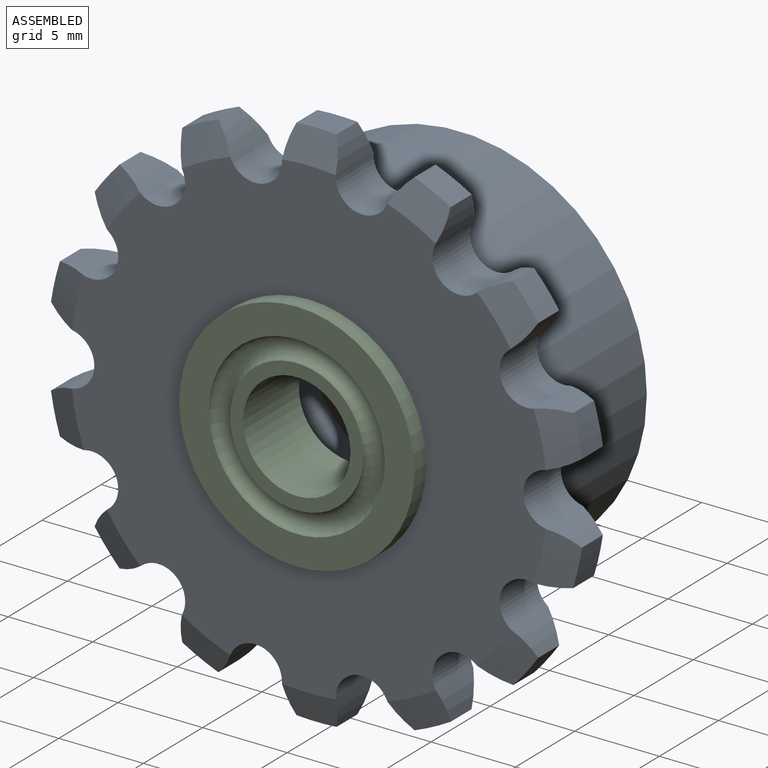
[diagram: assembled view]
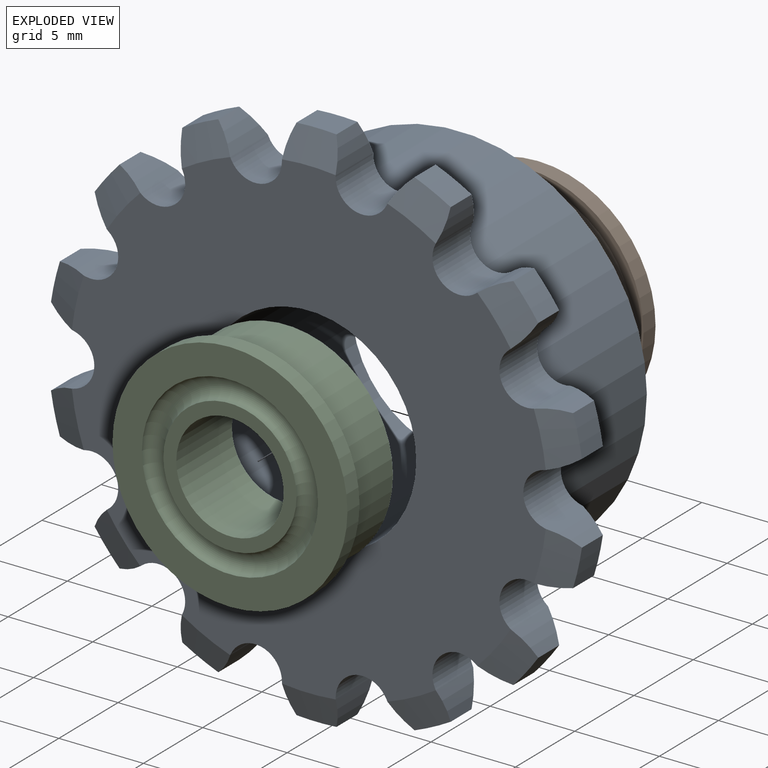
[diagram: exploded view]
GUIDED TOUR — MATED ASSEMBLY (Onshape document f20849c53b13fc9cc8166e43, AutoMate assembly f20849c53b13fc9cc8166e43_e1bc478d7630e20a39db0aa1_9a07ffc06514931fd1141d6a_default)

This assembly has 3 components, labeled P0..P2 below (a component is one placed occurrence of a part; the same part can appear more than once), held together by 2 mates. A mate is a constraint between two components; its type names the relative motion it leaves free:
  FASTENED — locks the two components together rigidly (no relative motion).
Axis/direction vectors are unit vectors and 'through' points are millimeter coordinates, both in the assembly's world frame.

MATES
  1. FASTENED "Fastened 2": P1 <-> P0, direction (0.000, -1.000, 0.000) through (0.00, 9.52, 0.00) mm
  2. FASTENED "Fastened 1": P2 <-> P0, direction (0.000, 1.000, 0.000) through (0.00, -3.18, 0.00) mm

ASSEMBLY ORDER
  1. P0 — the base component [order heuristic]
  2. P1 [order heuristic]
  3. P2 [order heuristic]
Order-tag legend:
  [order heuristic] — this assembly is geometrically interlocked (no collision-free removal order exists), so components are listed in mate-graph order; insertion feasibility is not verified.

Of the 3 components, 1 carries the full construction recipe — the FeatureScript program that regenerates the part's solid from scratch; the rest are supplied as boundary geometry only.
Each toured component is shown spotlighted twice — in the assembled view, then in the exploded view, where a leader line traces a displaced component back to its assembled socket (saturated green if recipe-attached, orange if geometry-only; every other component desaturated gray) — followed by its recipe or geometry summary and the mates that hold it.
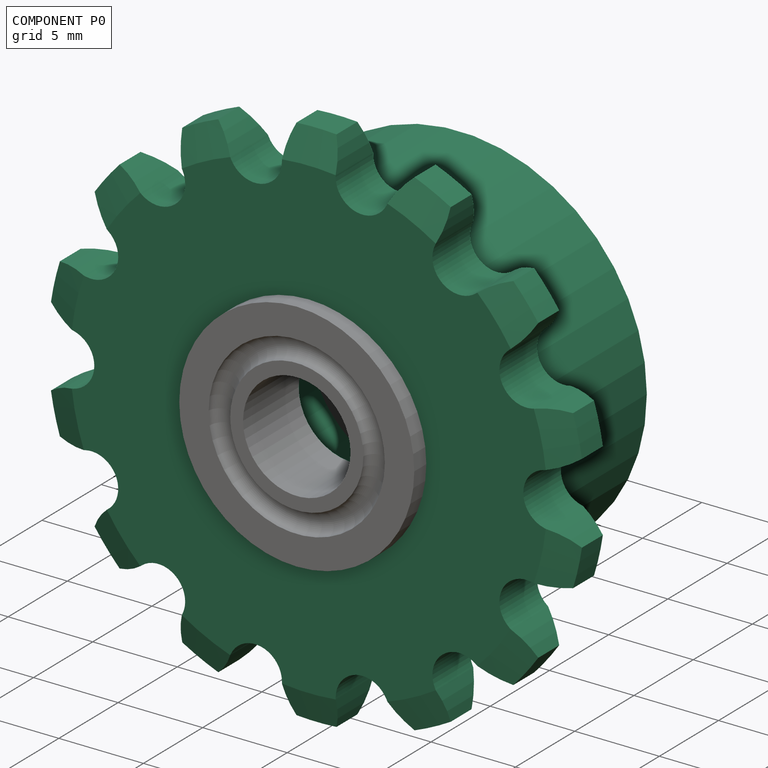
[diagram: component P0 — assembled]
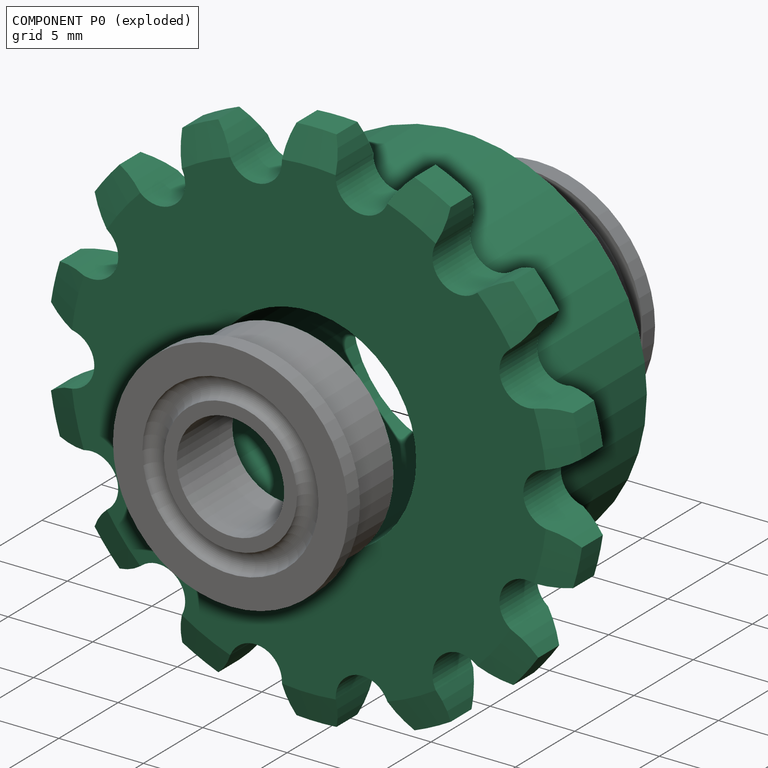
[diagram: component P0 — exploded]
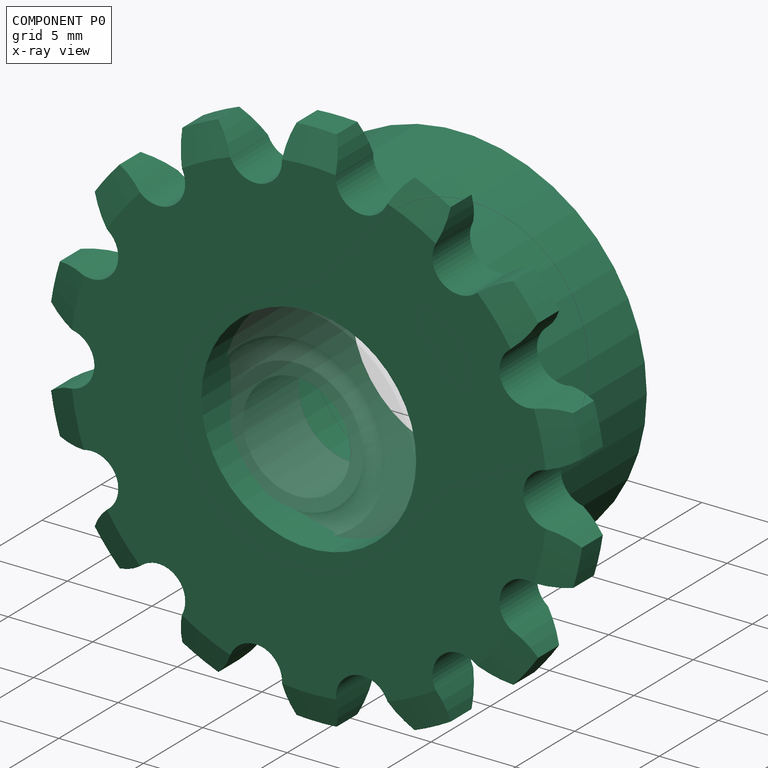
[diagram: component P0 — x-ray view]
COMPONENT P0 — recipe-attached (CADFS 00545166, mesh-verified: the recipe's output STEP matches this component's geometry to below the mesh-comparison resolution (tessellation chordal tolerance ~0.0696 mm)).
Held by: FASTENED mate "Fastened 2" to P1; FASTENED mate "Fastened 1" to P2.
Construction recipe (FeatureScript — the CAD program that rebuilds this solid; sketch coordinates are in the units given by the * unit suffixes, e.g. mm):

FeatureScript 1511;
import(path : "onshape/std/geometry.fs", version : "1511.0");
import(path : "onshape/std/common.fs", version : "1511.0");
const mm = millimeter;
const VERTEX = EntityType.VERTEX;
const EDGE = EntityType.EDGE;
const FACE = EntityType.FACE;
const BODY = EntityType.BODY;
function v(x, y){return vector(x, y);}
function OD(order){return orderDisambiguation(order);}
function OSD(set){return originalSetDisambiguation(set);}
function TD(topology){return topologyDisambiguation(topology);}
function TDD(query){return trueDependencyDisambiguation(query);}
function sQuery(a, b, c) {return sketchEntityQuery(a, b, c);}

annotation { "Feature Type Name" : "Feature", "Feature Type Description" : "" }
export const myFeature = defineFeature(function(context is Context, id is Id, definition is map)
    precondition{}
    {
        {
            var Q0;
            Q0=qCreatedBy(makeId("Front.planeOp"),FACE);
            var sketch = newSketch(context, id + "F0", { "sketchPlane" : qUnion([Q0])});
            skCircle(sketch, "E0.cCircle", {"center": v(0, 0) * mm, "radius": 13.91 * mm, "construction": true});
            skLineSegment(sketch, "E0.0", {"start": v(-3.17, 13.91) * mm, "end": v(3.17, 13.91) * mm, "construction": true});
            skLineSegment(sketch, "E0.1", {"start": v(3.18, 13.91) * mm, "end": v(8.9, 11.16) * mm, "construction": true});
            skLineSegment(sketch, "E0.2", {"start": v(8.9, 11.16) * mm, "end": v(12.86, 6.2) * mm, "construction": true});
            skLineSegment(sketch, "E0.3", {"start": v(12.86, 6.2) * mm, "end": v(14.27, 0) * mm, "construction": true});
            skLineSegment(sketch, "E0.4", {"start": v(14.27, 0) * mm, "end": v(12.86, -6.2) * mm, "construction": true});
            skLineSegment(sketch, "E0.5", {"start": v(12.86, -6.2) * mm, "end": v(8.9, -11.16) * mm, "construction": true});
            skLineSegment(sketch, "E0.6", {"start": v(8.9, -11.16) * mm, "end": v(3.18, -13.91) * mm, "construction": true});
            skLineSegment(sketch, "E0.7", {"start": v(3.17, -13.91) * mm, "end": v(-3.17, -13.91) * mm, "construction": true});
            skLineSegment(sketch, "E0.8", {"start": v(-3.17, -13.91) * mm, "end": v(-8.9, -11.16) * mm, "construction": true});
            skLineSegment(sketch, "E0.9", {"start": v(-8.9, -11.16) * mm, "end": v(-12.86, -6.2) * mm, "construction": true});
            skLineSegment(sketch, "E0.10", {"start": v(-12.86, -6.2) * mm, "end": v(-14.27, 0) * mm, "construction": true});
            skLineSegment(sketch, "E0.11", {"start": v(-14.27, 0) * mm, "end": v(-12.86, 6.2) * mm, "construction": true});
            skLineSegment(sketch, "E0.12", {"start": v(-12.86, 6.2) * mm, "end": v(-8.9, 11.16) * mm, "construction": true});
            skLineSegment(sketch, "E0.13", {"start": v(-8.9, 11.16) * mm, "end": v(-3.18, 13.91) * mm, "construction": true});
            skPoint(sketch, "E0.0.midPoint", {"position": v(0, 13.91) * mm});
            skCircle(sketch, "E1", {"center": v(3.17, 13.91) * mm, "radius": 1.59 * mm});
            skCircle(sketch, "E2", {"center": v(-3.17, 13.91) * mm, "radius": 1.59 * mm});
            skCircle(sketch, "E3", {"center": v(8.9, 11.16) * mm, "radius": 1.59 * mm});
            skCircle(sketch, "E4", {"center": v(-8.9, 11.16) * mm, "radius": 1.59 * mm});
            skCircle(sketch, "E5", {"center": v(-12.86, 6.2) * mm, "radius": 1.59 * mm});
            skCircle(sketch, "E6", {"center": v(-14.27, 0) * mm, "radius": 1.59 * mm});
            skCircle(sketch, "E7", {"center": v(12.86, 6.2) * mm, "radius": 1.59 * mm});
            skCircle(sketch, "E8", {"center": v(14.27, 0) * mm, "radius": 1.59 * mm});
            skCircle(sketch, "E9", {"center": v(12.86, -6.2) * mm, "radius": 1.59 * mm});
            skCircle(sketch, "E10", {"center": v(8.9, -11.16) * mm, "radius": 1.59 * mm});
            skCircle(sketch, "E11", {"center": v(3.18, -13.91) * mm, "radius": 1.59 * mm});
            skCircle(sketch, "E12", {"center": v(-12.86, -6.2) * mm, "radius": 1.59 * mm});
            skCircle(sketch, "E13", {"center": v(-8.9, -11.16) * mm, "radius": 1.59 * mm});
            skCircle(sketch, "E14", {"center": v(-3.17, -13.91) * mm, "radius": 1.59 * mm});
            skCircle(sketch, "E15", {"center": v(0, 0) * mm, "radius": 15.88 * mm});
            skArc(sketch, "E16", {"start": v(-1.59, 13.91) * mm, "mid": v(-1.17, 15.85) * mm, "end": v(0, 17.46) * mm});
            skArc(sketch, "E17", {"start": v(1.59, 13.91) * mm, "mid": v(1.17, 15.85) * mm, "end": v(0, 17.46) * mm});
            skArc(sketch, "E18", {"start": v(7.47, 11.84) * mm, "mid": v(7.94, 13.78) * mm, "end": v(7.58, 15.73) * mm});
            skArc(sketch, "E19", {"start": v(4.6, 13.22) * mm, "mid": v(5.82, 14.8) * mm, "end": v(7.58, 15.73) * mm});
            skArc(sketch, "E20", {"start": v(11.87, 7.43) * mm, "mid": v(13.13, 8.97) * mm, "end": v(13.65, 10.89) * mm});
            skArc(sketch, "E21", {"start": v(9.89, 9.91) * mm, "mid": v(11.66, 10.8) * mm, "end": v(13.65, 10.89) * mm});
            skArc(sketch, "E22", {"start": v(13.2, 4.64) * mm, "mid": v(15.2, 4.67) * mm, "end": v(17.02, 3.89) * mm});
            skArc(sketch, "E23", {"start": v(13.92, 1.55) * mm, "mid": v(15.72, 2.38) * mm, "end": v(17.02, 3.89) * mm});
            skArc(sketch, "E24", {"start": v(13.2, -4.64) * mm, "mid": v(15.2, -4.67) * mm, "end": v(17.02, -3.89) * mm});
            skArc(sketch, "E25", {"start": v(13.92, -1.55) * mm, "mid": v(15.72, -2.38) * mm, "end": v(17.02, -3.89) * mm});
            skArc(sketch, "E26", {"start": v(9.89, -9.91) * mm, "mid": v(11.66, -10.8) * mm, "end": v(13.65, -10.89) * mm});
            skArc(sketch, "E27", {"start": v(11.87, -7.43) * mm, "mid": v(13.13, -8.97) * mm, "end": v(13.65, -10.89) * mm});
            skArc(sketch, "E28", {"start": v(7.47, -11.84) * mm, "mid": v(7.94, -13.78) * mm, "end": v(7.58, -15.73) * mm});
            skArc(sketch, "E29", {"start": v(4.6, -13.22) * mm, "mid": v(5.82, -14.8) * mm, "end": v(7.58, -15.73) * mm});
            skArc(sketch, "E30", {"start": v(1.59, -13.91) * mm, "mid": v(1.17, -15.85) * mm, "end": v(0, -17.46) * mm});
            skArc(sketch, "E31", {"start": v(-1.59, -13.91) * mm, "mid": v(-1.17, -15.85) * mm, "end": v(0, -17.46) * mm});
            skArc(sketch, "E32", {"start": v(-4.6, -13.22) * mm, "mid": v(-5.82, -14.8) * mm, "end": v(-7.58, -15.73) * mm});
            skArc(sketch, "E33", {"start": v(-7.47, -11.84) * mm, "mid": v(-7.94, -13.78) * mm, "end": v(-7.58, -15.73) * mm});
            skArc(sketch, "E34", {"start": v(-11.8, -7.37) * mm, "mid": v(-13.1, -8.93) * mm, "end": v(-13.65, -10.89) * mm});
            skArc(sketch, "E35", {"start": v(-9.89, -9.91) * mm, "mid": v(-11.67, -10.8) * mm, "end": v(-13.65, -10.89) * mm});
            skArc(sketch, "E36", {"start": v(-13.92, -1.55) * mm, "mid": v(-15.72, -2.38) * mm, "end": v(-17.02, -3.89) * mm});
            skArc(sketch, "E37", {"start": v(-13.2, -4.64) * mm, "mid": v(-15.2, -4.67) * mm, "end": v(-17.02, -3.89) * mm});
            skArc(sketch, "E38", {"start": v(-13.92, 1.55) * mm, "mid": v(-15.72, 2.38) * mm, "end": v(-17.02, 3.89) * mm});
            skArc(sketch, "E39", {"start": v(-13.2, 4.64) * mm, "mid": v(-15.2, 4.67) * mm, "end": v(-17.02, 3.89) * mm});
            skArc(sketch, "E40", {"start": v(-9.89, 9.91) * mm, "mid": v(-11.66, 10.8) * mm, "end": v(-13.65, 10.89) * mm});
            skArc(sketch, "E41", {"start": v(-11.87, 7.43) * mm, "mid": v(-13.13, 8.97) * mm, "end": v(-13.65, 10.89) * mm});
            skArc(sketch, "E42", {"start": v(-4.6, 13.22) * mm, "mid": v(-5.82, 14.8) * mm, "end": v(-7.58, 15.73) * mm});
            skArc(sketch, "E43", {"start": v(-7.47, 11.84) * mm, "mid": v(-7.94, 13.78) * mm, "end": v(-7.58, 15.73) * mm});
            skCircle(sketch, "E44", {"center": v(0, 0) * mm, "radius": 6.35 * mm});
            skCircle(sketch, "E45", {"center": v(0, 0) * mm, "radius": 11.1 * mm});
            skSolve(sketch);
        }
        {
            var Q0;
            Q0=makeQuery(id+"F0.imprint","IMPRINT",FACE,{"disambiguationData":[TD([[makeQuery(id+"F0.imprint","IMPRINT",EDGE,{"derivedFrom":sQuery(id+"F0.wireOp",EDGE,"E45")}),-1.0]])]});
            var Q1;
            Q1=makeQuery(id+"F0.imprint","IMPRINT",FACE,{"disambiguationData":[TD([[makeQuery(id+"F0.imprint","IMPRINT",EDGE,{"derivedFrom":sQuery(id+"F0.wireOp",EDGE,"E44")}),-1.0]])]});
            extrude(context, id + "F1", {"entities" : qUnion([Q0, Q1]), "depth" : 3.17 * mm, "offsetDistance" : 25.4 * mm});
        }
        {
            var Q0;
            Q0=makeQuery(id+"F0.imprint","IMPRINT",FACE,{"disambiguationData":[TD([[makeQuery(id+"F0.imprint","IMPRINT",EDGE,{"derivedFrom":sQuery(id+"F0.wireOp",EDGE,"E44")}),-1.0]])]});
            extrude(context, id + "F2", {"entities" : qUnion([Q0]), "operationType" : NewBodyOperationType.ADD, "oppositeDirection" : true, "depth" : 9.52 * mm, "offsetDistance" : 25.4 * mm});
        }
        {
            var Q0;
            {var subQ0=sQuery(id+"F0.wireOp",EDGE,"E15");Q0=makeQuery(id+"F1.opExtrude","CAP_EDGE",EDGE,{"disambiguationData":[OSD([subQ0]),TDD([makeQuery(id+"F0.imprint","IMPRINT",EDGE,{"disambiguationData":[TD([[makeQuery(id+"F0.imprint","INTERSECT",VERTEX,{"derivedFrom":[subQ0,sQuery(id+"F0.wireOp",EDGE,"E22")]}),1.0]])],"derivedFrom":subQ0})])],"isStart":true});}
            var Q1;
            {var subQ0=sQuery(id+"F0.wireOp",EDGE,"E15");Q1=makeQuery(id+"F1.opExtrude","CAP_EDGE",EDGE,{"disambiguationData":[OSD([subQ0]),TDD([makeQuery(id+"F0.imprint","IMPRINT",EDGE,{"disambiguationData":[TD([[makeQuery(id+"F0.imprint","INTERSECT",VERTEX,{"derivedFrom":[subQ0,sQuery(id+"F0.wireOp",EDGE,"E24")]}),-1.0]])],"derivedFrom":subQ0})])],"isStart":true});}
            var Q2;
            {var subQ0=sQuery(id+"F0.wireOp",EDGE,"E15");Q2=makeQuery(id+"F1.opExtrude","CAP_EDGE",EDGE,{"disambiguationData":[OSD([subQ0]),TDD([makeQuery(id+"F0.imprint","IMPRINT",EDGE,{"disambiguationData":[TD([[makeQuery(id+"F0.imprint","INTERSECT",VERTEX,{"derivedFrom":[subQ0,sQuery(id+"F0.wireOp",EDGE,"E26")]}),-1.0]])],"derivedFrom":subQ0})])],"isStart":true});}
            var Q3;
            {var subQ0=sQuery(id+"F0.wireOp",EDGE,"E15");Q3=makeQuery(id+"F1.opExtrude","CAP_EDGE",EDGE,{"disambiguationData":[OSD([subQ0]),TDD([makeQuery(id+"F0.imprint","IMPRINT",EDGE,{"disambiguationData":[TD([[makeQuery(id+"F0.imprint","INTERSECT",VERTEX,{"derivedFrom":[subQ0,sQuery(id+"F0.wireOp",EDGE,"E29")]}),-1.0]])],"derivedFrom":subQ0})])],"isStart":true});}
            var Q4;
            {var subQ0=sQuery(id+"F0.wireOp",EDGE,"E15");Q4=makeQuery(id+"F1.opExtrude","CAP_EDGE",EDGE,{"disambiguationData":[OSD([subQ0]),TDD([makeQuery(id+"F0.imprint","IMPRINT",EDGE,{"disambiguationData":[TD([[makeQuery(id+"F0.imprint","INTERSECT",VERTEX,{"derivedFrom":[subQ0,sQuery(id+"F0.wireOp",EDGE,"E31")]}),-1.0]])],"derivedFrom":subQ0})])],"isStart":true});}
            var Q5;
            {var subQ0=sQuery(id+"F0.wireOp",EDGE,"E15");Q5=makeQuery(id+"F1.opExtrude","CAP_EDGE",EDGE,{"disambiguationData":[OSD([subQ0]),TDD([makeQuery(id+"F0.imprint","IMPRINT",EDGE,{"disambiguationData":[TD([[makeQuery(id+"F0.imprint","INTERSECT",VERTEX,{"derivedFrom":[subQ0,sQuery(id+"F0.wireOp",EDGE,"E33")]}),-1.0]])],"derivedFrom":subQ0})])],"isStart":true});}
            var Q6;
            {var subQ0=sQuery(id+"F0.wireOp",EDGE,"E15");Q6=makeQuery(id+"F1.opExtrude","CAP_EDGE",EDGE,{"disambiguationData":[OSD([subQ0]),TDD([makeQuery(id+"F0.imprint","IMPRINT",EDGE,{"disambiguationData":[TD([[makeQuery(id+"F0.imprint","INTERSECT",VERTEX,{"derivedFrom":[subQ0,sQuery(id+"F0.wireOp",EDGE,"E34")]}),-1.0]])],"derivedFrom":subQ0})])],"isStart":true});}
            var Q7;
            {var subQ0=sQuery(id+"F0.wireOp",EDGE,"E15");Q7=makeQuery(id+"F1.opExtrude","CAP_EDGE",EDGE,{"disambiguationData":[OSD([subQ0]),TDD([makeQuery(id+"F0.imprint","IMPRINT",EDGE,{"disambiguationData":[TD([[makeQuery(id+"F0.imprint","INTERSECT",VERTEX,{"derivedFrom":[subQ0,sQuery(id+"F0.wireOp",EDGE,"E36")]}),-1.0]])],"derivedFrom":subQ0})])],"isStart":true});}
            var Q8;
            {var subQ0=sQuery(id+"F0.wireOp",EDGE,"E15");Q8=makeQuery(id+"F1.opExtrude","CAP_EDGE",EDGE,{"disambiguationData":[OSD([subQ0]),TDD([makeQuery(id+"F0.imprint","IMPRINT",EDGE,{"disambiguationData":[TD([[makeQuery(id+"F0.imprint","INTERSECT",VERTEX,{"derivedFrom":[subQ0,sQuery(id+"F0.wireOp",EDGE,"E39")]}),-1.0]])],"derivedFrom":subQ0})])],"isStart":true});}
            var Q9;
            {var subQ0=sQuery(id+"F0.wireOp",EDGE,"E15");Q9=makeQuery(id+"F1.opExtrude","CAP_EDGE",EDGE,{"disambiguationData":[OSD([subQ0]),TDD([makeQuery(id+"F0.imprint","IMPRINT",EDGE,{"disambiguationData":[TD([[makeQuery(id+"F0.imprint","INTERSECT",VERTEX,{"derivedFrom":[subQ0,sQuery(id+"F0.wireOp",EDGE,"E40")]}),-1.0]])],"derivedFrom":subQ0})])],"isStart":true});}
            var Q10;
            {var subQ0=sQuery(id+"F0.wireOp",EDGE,"E15");Q10=makeQuery(id+"F1.opExtrude","CAP_EDGE",EDGE,{"disambiguationData":[OSD([subQ0]),TDD([makeQuery(id+"F0.imprint","IMPRINT",EDGE,{"disambiguationData":[TD([[makeQuery(id+"F0.imprint","INTERSECT",VERTEX,{"derivedFrom":[subQ0,sQuery(id+"F0.wireOp",EDGE,"E42")]}),-1.0]])],"derivedFrom":subQ0})])],"isStart":true});}
            var Q11;
            {var subQ0=sQuery(id+"F0.wireOp",EDGE,"E15");Q11=makeQuery(id+"F1.opExtrude","CAP_EDGE",EDGE,{"disambiguationData":[OSD([subQ0]),TDD([makeQuery(id+"F0.imprint","IMPRINT",EDGE,{"disambiguationData":[TD([[makeQuery(id+"F0.imprint","INTERSECT",VERTEX,{"derivedFrom":[subQ0,sQuery(id+"F0.wireOp",EDGE,"E17")]}),-1.0]])],"derivedFrom":subQ0})])],"isStart":true});}
            var Q12;
            {var subQ0=sQuery(id+"F0.wireOp",EDGE,"E15");Q12=makeQuery(id+"F1.opExtrude","CAP_EDGE",EDGE,{"disambiguationData":[OSD([subQ0]),TDD([makeQuery(id+"F0.imprint","IMPRINT",EDGE,{"disambiguationData":[TD([[makeQuery(id+"F0.imprint","INTERSECT",VERTEX,{"derivedFrom":[subQ0,sQuery(id+"F0.wireOp",EDGE,"E18")]}),-1.0]])],"derivedFrom":subQ0})])],"isStart":true});}
            var Q13;
            {var subQ0=sQuery(id+"F0.wireOp",EDGE,"E15");Q13=makeQuery(id+"F1.opExtrude","CAP_EDGE",EDGE,{"disambiguationData":[OSD([subQ0]),TDD([makeQuery(id+"F0.imprint","IMPRINT",EDGE,{"disambiguationData":[TD([[makeQuery(id+"F0.imprint","INTERSECT",VERTEX,{"derivedFrom":[subQ0,sQuery(id+"F0.wireOp",EDGE,"E20")]}),-1.0]])],"derivedFrom":subQ0})])],"isStart":true});}
            chamfer(context, id + "F3", {"entities" : qUnion([Q0, Q1, Q2, Q3, Q4, Q5, Q6, Q7, Q8, Q9, Q10, Q11, Q12, Q13]), "chamferType" : ChamferType.OFFSET_ANGLE, "width" : 0.76 * mm, "oppositeDirection" : false, "angle" : 67 * degree, "tangentPropagation" : true});
        }
        {
            var Q0;
            {var subQ0=sQuery(id+"F0.wireOp",EDGE,"E15");Q0=makeQuery(id+"F1.opExtrude","CAP_EDGE",EDGE,{"disambiguationData":[OSD([subQ0]),TDD([makeQuery(id+"F0.imprint","IMPRINT",EDGE,{"disambiguationData":[TD([[makeQuery(id+"F0.imprint","INTERSECT",VERTEX,{"derivedFrom":[subQ0,sQuery(id+"F0.wireOp",EDGE,"E17")]}),-1.0]])],"derivedFrom":subQ0})])],"isStart":false});}
            var Q1;
            {var subQ0=sQuery(id+"F0.wireOp",EDGE,"E15");Q1=makeQuery(id+"F1.opExtrude","CAP_EDGE",EDGE,{"disambiguationData":[OSD([subQ0]),TDD([makeQuery(id+"F0.imprint","IMPRINT",EDGE,{"disambiguationData":[TD([[makeQuery(id+"F0.imprint","INTERSECT",VERTEX,{"derivedFrom":[subQ0,sQuery(id+"F0.wireOp",EDGE,"E18")]}),-1.0]])],"derivedFrom":subQ0})])],"isStart":false});}
            var Q2;
            {var subQ0=sQuery(id+"F0.wireOp",EDGE,"E15");Q2=makeQuery(id+"F1.opExtrude","CAP_EDGE",EDGE,{"disambiguationData":[OSD([subQ0]),TDD([makeQuery(id+"F0.imprint","IMPRINT",EDGE,{"disambiguationData":[TD([[makeQuery(id+"F0.imprint","INTERSECT",VERTEX,{"derivedFrom":[subQ0,sQuery(id+"F0.wireOp",EDGE,"E20")]}),-1.0]])],"derivedFrom":subQ0})])],"isStart":false});}
            var Q3;
            {var subQ0=sQuery(id+"F0.wireOp",EDGE,"E15");Q3=makeQuery(id+"F1.opExtrude","CAP_EDGE",EDGE,{"disambiguationData":[OSD([subQ0]),TDD([makeQuery(id+"F0.imprint","IMPRINT",EDGE,{"disambiguationData":[TD([[makeQuery(id+"F0.imprint","INTERSECT",VERTEX,{"derivedFrom":[subQ0,sQuery(id+"F0.wireOp",EDGE,"E22")]}),1.0]])],"derivedFrom":subQ0})])],"isStart":false});}
            var Q4;
            {var subQ0=sQuery(id+"F0.wireOp",EDGE,"E15");Q4=makeQuery(id+"F1.opExtrude","CAP_EDGE",EDGE,{"disambiguationData":[OSD([subQ0]),TDD([makeQuery(id+"F0.imprint","IMPRINT",EDGE,{"disambiguationData":[TD([[makeQuery(id+"F0.imprint","INTERSECT",VERTEX,{"derivedFrom":[subQ0,sQuery(id+"F0.wireOp",EDGE,"E24")]}),-1.0]])],"derivedFrom":subQ0})])],"isStart":false});}
            var Q5;
            {var subQ0=sQuery(id+"F0.wireOp",EDGE,"E15");Q5=makeQuery(id+"F1.opExtrude","CAP_EDGE",EDGE,{"disambiguationData":[OSD([subQ0]),TDD([makeQuery(id+"F0.imprint","IMPRINT",EDGE,{"disambiguationData":[TD([[makeQuery(id+"F0.imprint","INTERSECT",VERTEX,{"derivedFrom":[subQ0,sQuery(id+"F0.wireOp",EDGE,"E26")]}),-1.0]])],"derivedFrom":subQ0})])],"isStart":false});}
            var Q6;
            {var subQ0=sQuery(id+"F0.wireOp",EDGE,"E15");Q6=makeQuery(id+"F1.opExtrude","CAP_EDGE",EDGE,{"disambiguationData":[OSD([subQ0]),TDD([makeQuery(id+"F0.imprint","IMPRINT",EDGE,{"disambiguationData":[TD([[makeQuery(id+"F0.imprint","INTERSECT",VERTEX,{"derivedFrom":[subQ0,sQuery(id+"F0.wireOp",EDGE,"E29")]}),-1.0]])],"derivedFrom":subQ0})])],"isStart":false});}
            var Q7;
            {var subQ0=sQuery(id+"F0.wireOp",EDGE,"E15");Q7=makeQuery(id+"F1.opExtrude","CAP_EDGE",EDGE,{"disambiguationData":[OSD([subQ0]),TDD([makeQuery(id+"F0.imprint","IMPRINT",EDGE,{"disambiguationData":[TD([[makeQuery(id+"F0.imprint","INTERSECT",VERTEX,{"derivedFrom":[subQ0,sQuery(id+"F0.wireOp",EDGE,"E31")]}),-1.0]])],"derivedFrom":subQ0})])],"isStart":false});}
            var Q8;
            {var subQ0=sQuery(id+"F0.wireOp",EDGE,"E15");Q8=makeQuery(id+"F1.opExtrude","CAP_EDGE",EDGE,{"disambiguationData":[OSD([subQ0]),TDD([makeQuery(id+"F0.imprint","IMPRINT",EDGE,{"disambiguationData":[TD([[makeQuery(id+"F0.imprint","INTERSECT",VERTEX,{"derivedFrom":[subQ0,sQuery(id+"F0.wireOp",EDGE,"E33")]}),-1.0]])],"derivedFrom":subQ0})])],"isStart":false});}
            var Q9;
            {var subQ0=sQuery(id+"F0.wireOp",EDGE,"E15");Q9=makeQuery(id+"F1.opExtrude","CAP_EDGE",EDGE,{"disambiguationData":[OSD([subQ0]),TDD([makeQuery(id+"F0.imprint","IMPRINT",EDGE,{"disambiguationData":[TD([[makeQuery(id+"F0.imprint","INTERSECT",VERTEX,{"derivedFrom":[subQ0,sQuery(id+"F0.wireOp",EDGE,"E34")]}),-1.0]])],"derivedFrom":subQ0})])],"isStart":false});}
            var Q10;
            {var subQ0=sQuery(id+"F0.wireOp",EDGE,"E15");Q10=makeQuery(id+"F1.opExtrude","CAP_EDGE",EDGE,{"disambiguationData":[OSD([subQ0]),TDD([makeQuery(id+"F0.imprint","IMPRINT",EDGE,{"disambiguationData":[TD([[makeQuery(id+"F0.imprint","INTERSECT",VERTEX,{"derivedFrom":[subQ0,sQuery(id+"F0.wireOp",EDGE,"E36")]}),-1.0]])],"derivedFrom":subQ0})])],"isStart":false});}
            var Q11;
            {var subQ0=sQuery(id+"F0.wireOp",EDGE,"E15");Q11=makeQuery(id+"F1.opExtrude","CAP_EDGE",EDGE,{"disambiguationData":[OSD([subQ0]),TDD([makeQuery(id+"F0.imprint","IMPRINT",EDGE,{"disambiguationData":[TD([[makeQuery(id+"F0.imprint","INTERSECT",VERTEX,{"derivedFrom":[subQ0,sQuery(id+"F0.wireOp",EDGE,"E39")]}),-1.0]])],"derivedFrom":subQ0})])],"isStart":false});}
            var Q12;
            {var subQ0=sQuery(id+"F0.wireOp",EDGE,"E15");Q12=makeQuery(id+"F1.opExtrude","CAP_EDGE",EDGE,{"disambiguationData":[OSD([subQ0]),TDD([makeQuery(id+"F0.imprint","IMPRINT",EDGE,{"disambiguationData":[TD([[makeQuery(id+"F0.imprint","INTERSECT",VERTEX,{"derivedFrom":[subQ0,sQuery(id+"F0.wireOp",EDGE,"E40")]}),-1.0]])],"derivedFrom":subQ0})])],"isStart":false});}
            var Q13;
            {var subQ0=sQuery(id+"F0.wireOp",EDGE,"E15");Q13=makeQuery(id+"F1.opExtrude","CAP_EDGE",EDGE,{"disambiguationData":[OSD([subQ0]),TDD([makeQuery(id+"F0.imprint","IMPRINT",EDGE,{"disambiguationData":[TD([[makeQuery(id+"F0.imprint","INTERSECT",VERTEX,{"derivedFrom":[subQ0,sQuery(id+"F0.wireOp",EDGE,"E42")]}),-1.0]])],"derivedFrom":subQ0})])],"isStart":false});}
            chamfer(context, id + "F4", {"entities" : qUnion([Q0, Q1, Q2, Q3, Q4, Q5, Q6, Q7, Q8, Q9, Q10, Q11, Q12, Q13]), "chamferType" : ChamferType.OFFSET_ANGLE, "width" : 1.78 * mm, "oppositeDirection" : false, "angle" : 20 * degree, "tangentPropagation" : true});
        }
    });
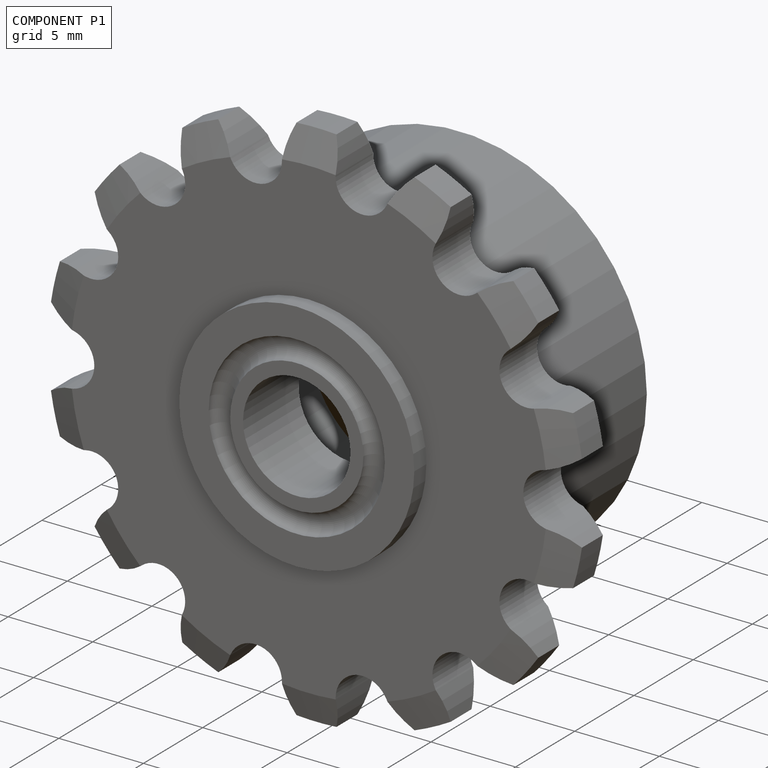
[diagram: component P1 — assembled]
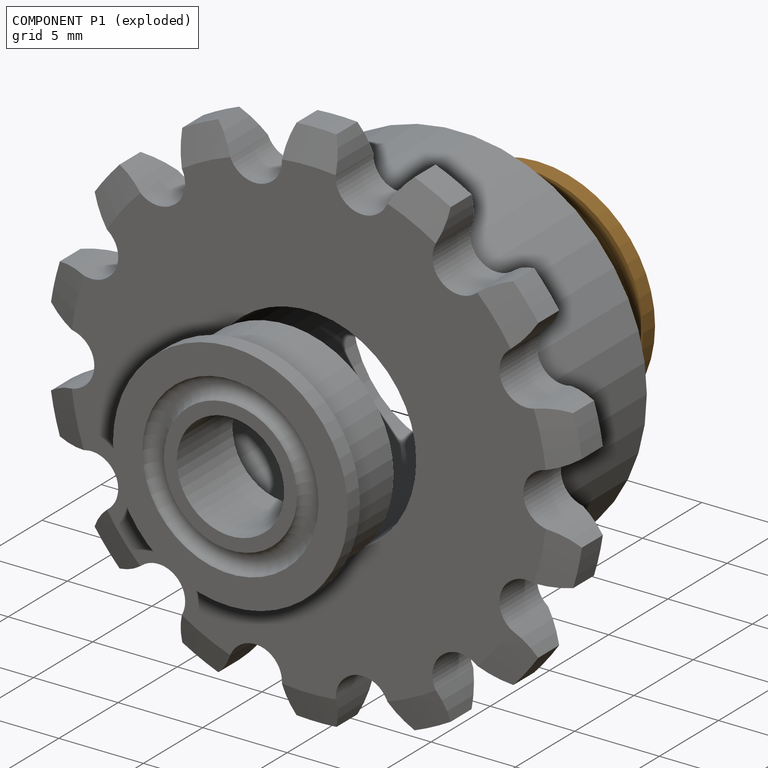
[diagram: component P1 — exploded]
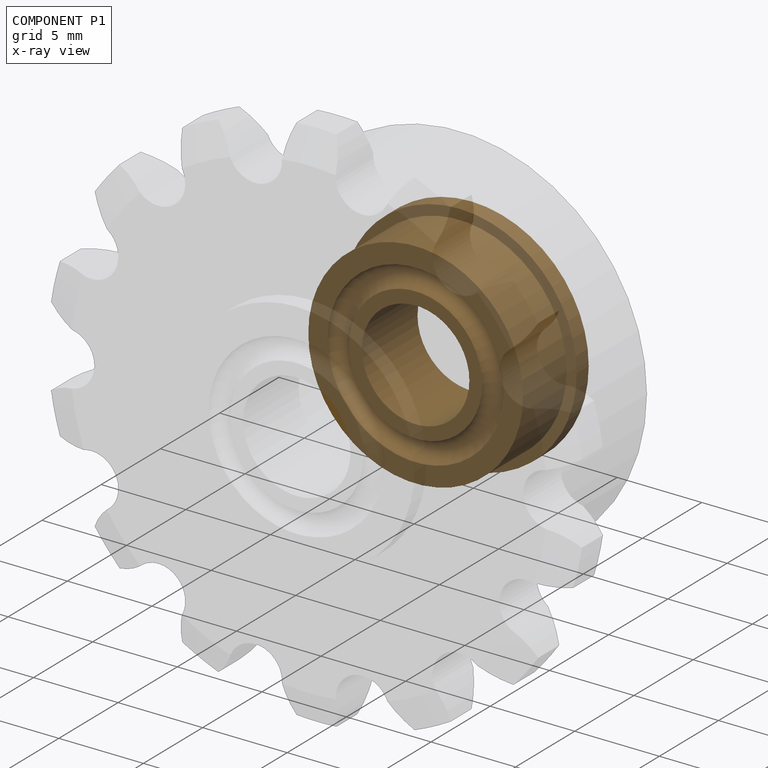
[diagram: component P1 — x-ray view]
COMPONENT P1 — geometry summary (no construction recipe available for this part):
  bounding box: 13.9 x 13.9 x 5.6 mm
  B-rep topology: 1 solid, 10 faces, 30 edges
  volume: 435 mm^3 (40% of its bounding box)
  symmetry: revolution-symmetric about the z axis through its bounding-box center; mirror-symmetric across its x mid-plane, y mid-plane
Held by: FASTENED mate "Fastened 2" to P0.
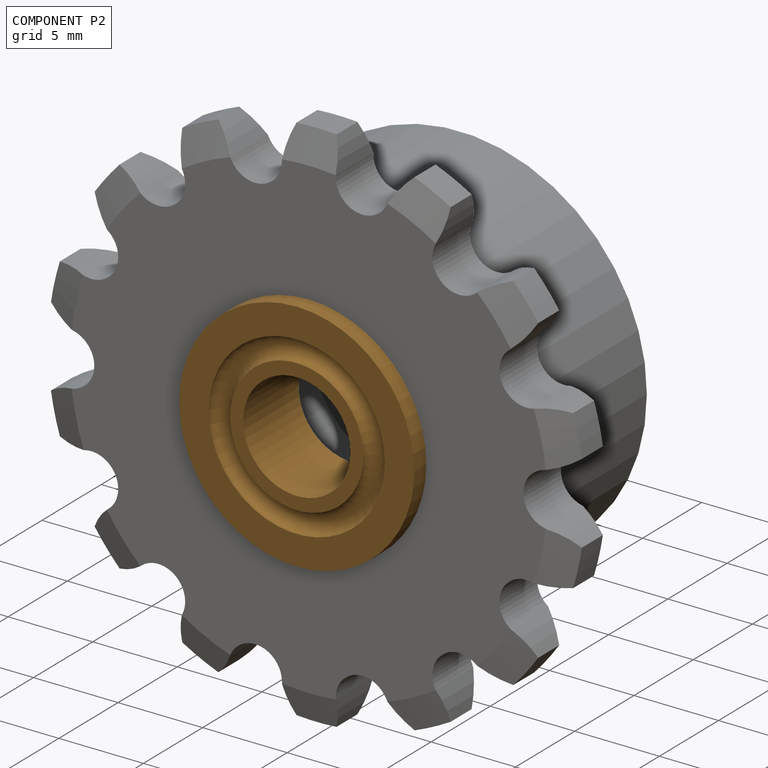
[diagram: component P2 — assembled]
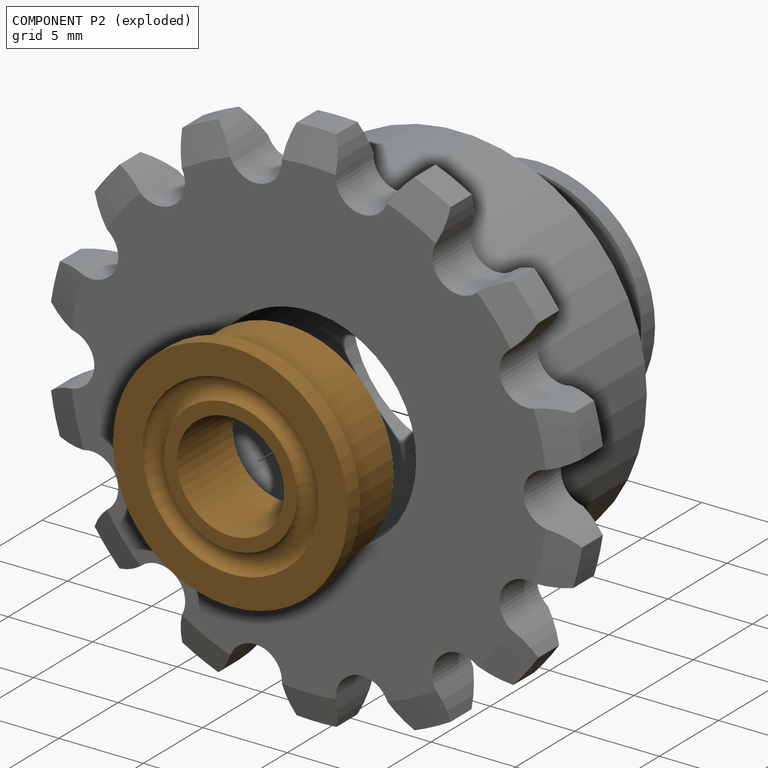
[diagram: component P2 — exploded]
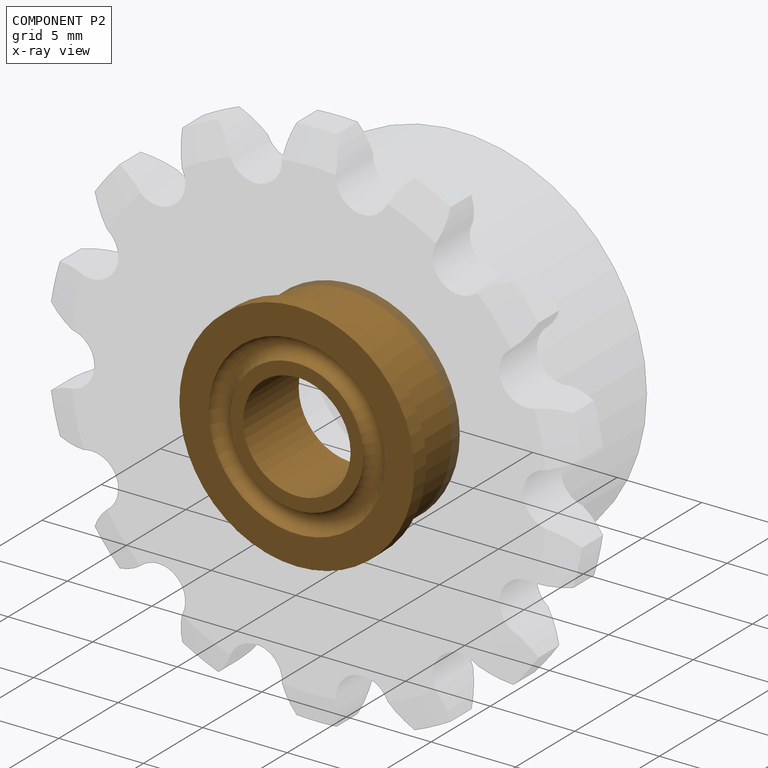
[diagram: component P2 — x-ray view]
COMPONENT P2 — geometry summary (no construction recipe available for this part):
  bounding box: 13.9 x 13.9 x 5.6 mm
  B-rep topology: 1 solid, 10 faces, 30 edges
  volume: 435 mm^3 (40% of its bounding box)
  symmetry: revolution-symmetric about the z axis through its bounding-box center; mirror-symmetric across its x mid-plane, y mid-plane
Held by: FASTENED mate "Fastened 1" to P0.
PROVENANCE & LICENSES
Assembly (occurrences, transforms, mates, per-part STEP geometry): AutoMate dataset, Zenodo record 7776208, CC0.
Construction recipes: CADFS (HuggingFace VladPyatov/CADFS, CC-BY-4.0, layered over the ABC dataset), FeatureScript reconstruction programs keyed by ABC model id.
Join: ABC meta listings map ABC model id -> Onshape documentId; within a shared document, parts are matched by geometric signature (bounding-box dims + volume at 0.1% relative tolerance, exact B-rep face/solid counts).
Verification: 1 of this assembly's 3 components carries a recipe attachment, and every attachment is mesh-verified: the CADFS STEP and the AutoMate member STEP were compared as meshes in their shared local frame (symmetric sampled-point-to-mesh distance); worst across the 1 attachment: below the mesh-comparison resolution (tessellation chordal tolerance ~0.0696 mm) on a 46 mm part.
Renders: orthographic iso camera (az 35 / el 25); the floor grid conveys scale (grid pitch printed in each image; no ruler). In the exploded view each component is displaced by its stored offset vector: the offsets alone carry the explosion direction (mate normal/axis signs are not orientation cues and do not encode it), and separation distances are assigned per mate-chain, not proportionally to assembly-order depth.
